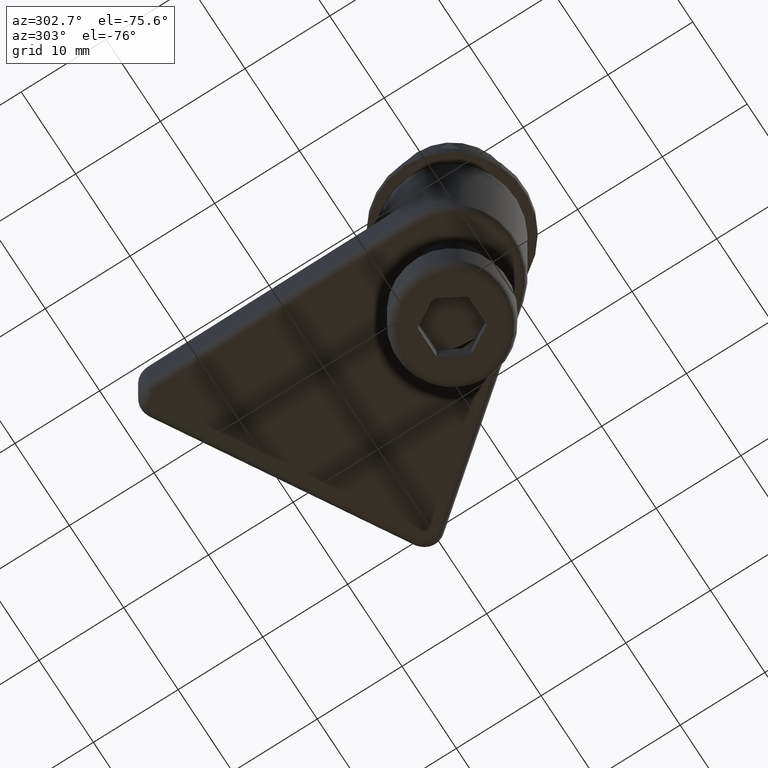
[diagram: clean part render]
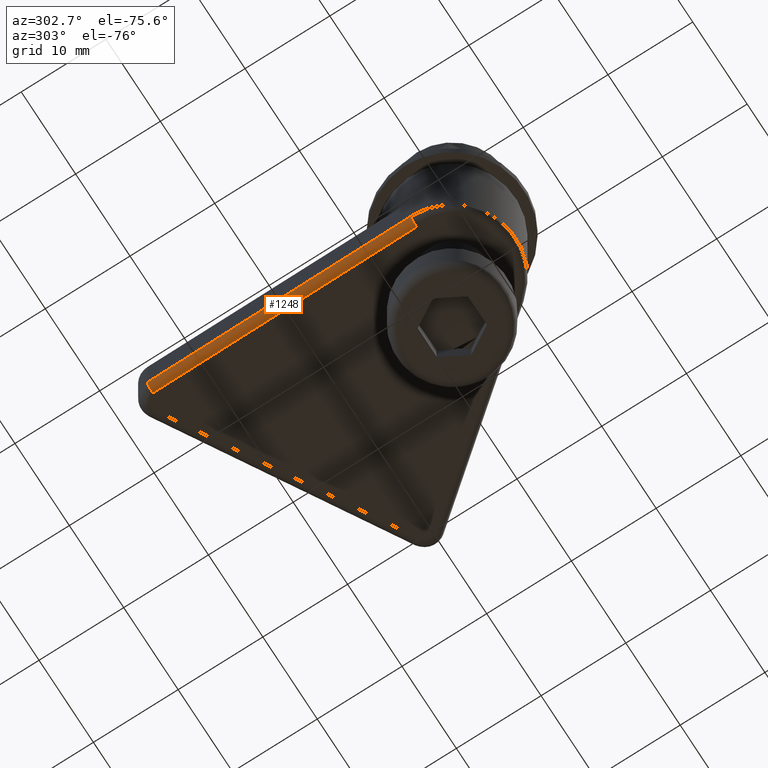
[diagram: same view with one face highlighted and labeled with its STEP entity id]
A machine part, auxiliary view. The second image highlights one B-rep face of the part: STEP entity #1248.
In plain terms, the highlighted cylindrical surface (edge-blend (fillet) strip) has radius 1 mm, axis along (-0.006, -1, -0).
Its self-contained STEP definition (entity closure, byte-faithful):
#136=LINE('',#2307,#201);
#137=LINE('',#2308,#202);
#201=VECTOR('',#1828,10.);
#202=VECTOR('',#1829,10.);
#240=CYLINDRICAL_SURFACE('',#1512,1.);
#315=FACE_OUTER_BOUND('',#400,.T.);
#400=EDGE_LOOP('',(#1038,#1039,#1040,#1041));
#475=CIRCLE('',#1497,0.999999999999999);
#484=CIRCLE('',#1509,1.);
#578=VERTEX_POINT('',#2260);
#579=VERTEX_POINT('',#2261);
#588=VERTEX_POINT('',#2301);
#589=VERTEX_POINT('',#2302);
#731=EDGE_CURVE('',#578,#579,#475,.T.);
#744=EDGE_CURVE('',#588,#589,#484,.T.);
#747=EDGE_CURVE('',#588,#579,#136,.T.);
#748=EDGE_CURVE('',#578,#589,#137,.T.);
#1038=ORIENTED_EDGE('',*,*,#731,.T.);
#1039=ORIENTED_EDGE('',*,*,#747,.F.);
#1040=ORIENTED_EDGE('',*,*,#744,.T.);
#1041=ORIENTED_EDGE('',*,*,#748,.F.);
#1248=ADVANCED_FACE('',(#315),#240,.T.);
#1497=AXIS2_PLACEMENT_3D('',#2262,#1792,#1793);
#1509=AXIS2_PLACEMENT_3D('',#2303,#1820,#1821);
#1512=AXIS2_PLACEMENT_3D('',#2306,#1826,#1827);
#1792=DIRECTION('center_axis',(0.782336613391329,-0.622855860811622,0.));
#1793=DIRECTION('ref_axis',(0.622855860811622,0.782336613391328,0.));
#1820=DIRECTION('center_axis',(-0.782336613391328,0.622855860811622,0.));
#1821=DIRECTION('ref_axis',(0.,0.,1.));
#1826=DIRECTION('center_axis',(0.782336613391328,-0.622855860811623,0.));
#1827=DIRECTION('ref_axis',(0.440425602881683,0.553195524499526,0.707106781186548));
#1828=DIRECTION('',(-0.782336613391328,0.622855860811623,0.));
#1829=DIRECTION('',(0.782336613391328,-0.622855860811623,0.));
#2260=CARTESIAN_POINT('',(-19.7682093782966,25.3250899036128,-1.));
#2261=CARTESIAN_POINT('',(-20.3910652391082,24.5427532902214,0.));
#2262=CARTESIAN_POINT('Origin',(-20.3910652391082,24.5427532902214,-1.));
#2301=CARTESIAN_POINT('',(4.04856309527555,5.08518798704363,0.));
#2302=CARTESIAN_POINT('',(4.67141895608717,5.86752460043496,-1.));
#2303=CARTESIAN_POINT('Origin',(4.04856309527555,5.08518798704363,-1.));
#2306=CARTESIAN_POINT('Origin',(4.04856320095985,5.08518790290327,-1.));
#2307=CARTESIAN_POINT('',(4.04856320095985,5.08518790290327,0.));
#2308=CARTESIAN_POINT('',(4.67141906177147,5.8675245162946,-1.));